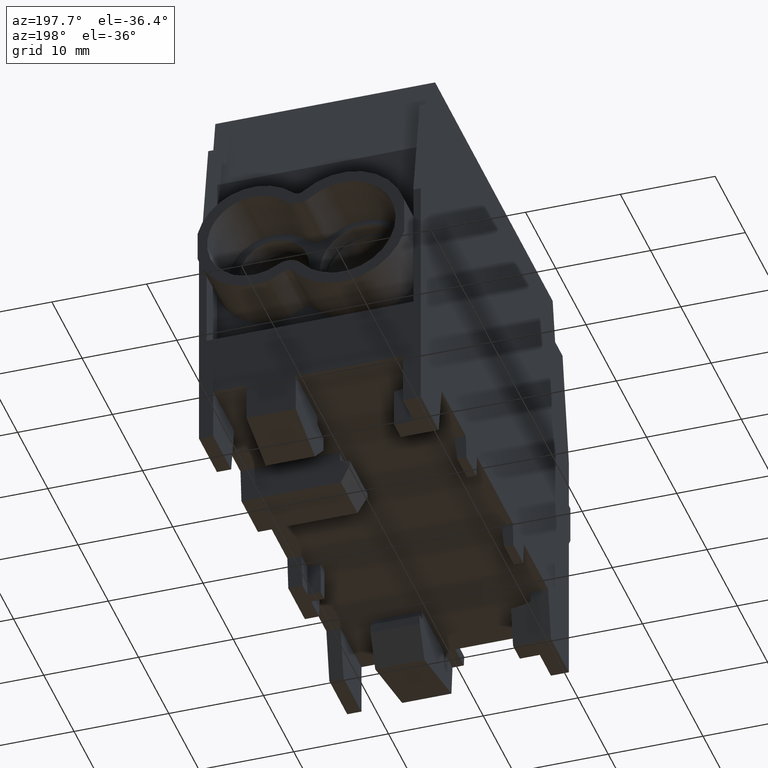
[diagram: clean part render]
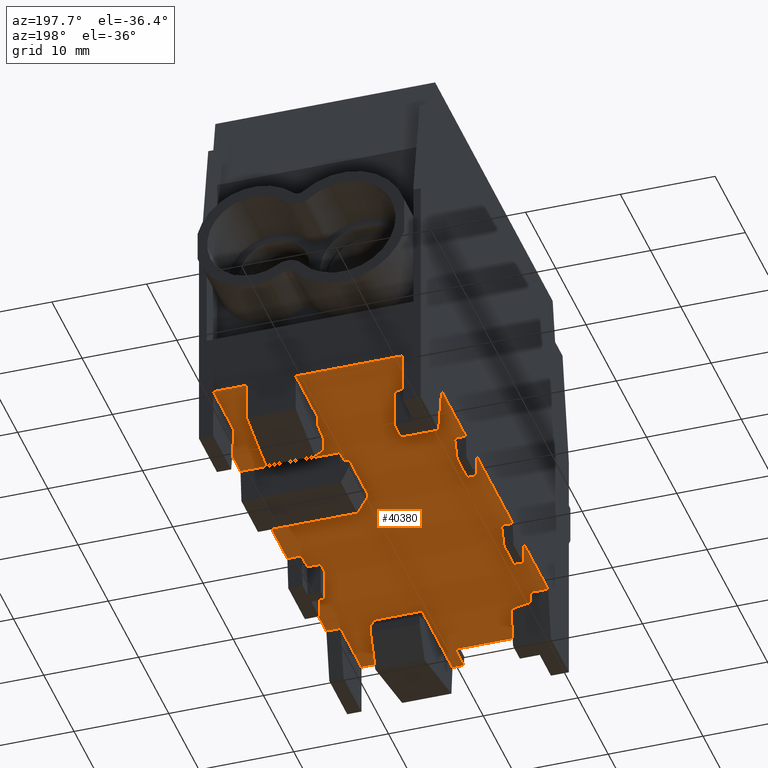
[diagram: same view with one face highlighted and labeled with its STEP entity id]
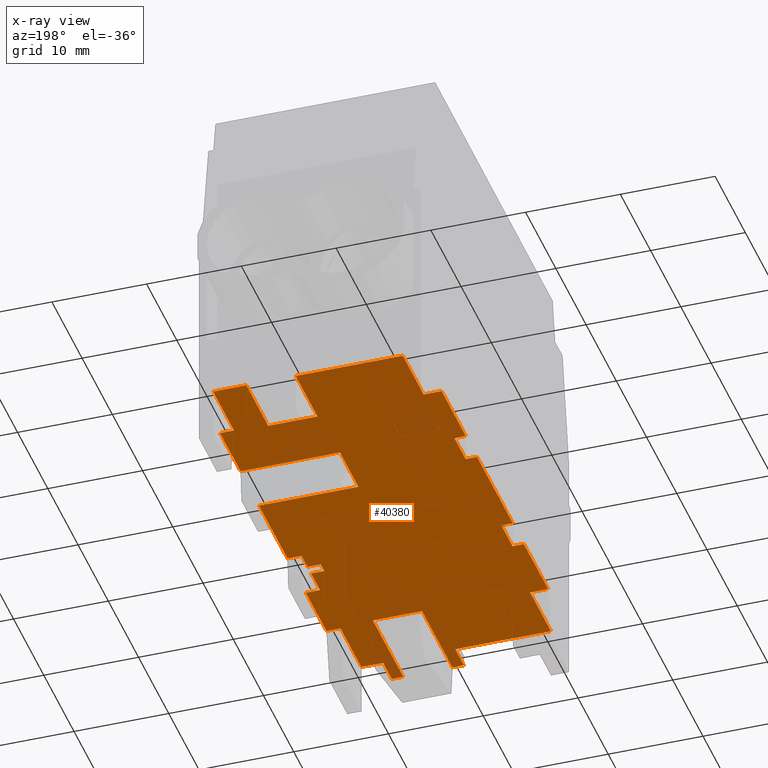
[diagram: x-ray of the same camera — body ghosted, the highlighted face saturated]
A machine part, auxiliary view. The second image highlights one B-rep face of the part: STEP entity #40380.
The next image is the same camera in x-ray: the body ghosted, the highlighted face saturated — about 4% of this face is hidden behind the body in this view.
In plain terms, the highlighted planar face has unit normal (0, 0, -1).
Its self-contained STEP definition (entity closure, byte-faithful):
#360=CARTESIAN_POINT('',(-11.7,-17.6,-8.));
#370=VERTEX_POINT('',#360);
#400=CARTESIAN_POINT('',(-11.7,7.105427357601E-15,-8.));
#410=DIRECTION('',(0.,1.,0.));
#420=VECTOR('',#410,1.);
#430=LINE('',#400,#420);
#440=CARTESIAN_POINT('',(-11.7,-9.59999999999999,-8.));
#450=VERTEX_POINT('',#440);
#460=EDGE_CURVE('',#370,#450,#430,.T.);
#680=CARTESIAN_POINT('',(-11.7,-5.89999999999999,-8.));
#690=VERTEX_POINT('',#680);
#720=CARTESIAN_POINT('',(-11.7,5.90000000000001,-8.));
#730=VERTEX_POINT('',#720);
#740=EDGE_CURVE('',#690,#730,#430,.T.);
#960=CARTESIAN_POINT('',(-11.7,9.60000000000001,-8.));
#970=VERTEX_POINT('',#960);
#1000=CARTESIAN_POINT('',(-11.7,17.6,-8.));
#1010=VERTEX_POINT('',#1000);
#1020=EDGE_CURVE('',#970,#1010,#430,.T.);
#1630=CARTESIAN_POINT('',(1.20000000000001,4.6999093082074,-8.));
#1640=VERTEX_POINT('',#1630);
#1790=CARTESIAN_POINT('',(1.20000000000001,10.8000906917926,-8.));
#1800=VERTEX_POINT('',#1790);
#1830=CARTESIAN_POINT('',(1.20000000000001,7.105427357601E-15,-8.));
#1840=DIRECTION('',(0.,-1.,0.));
#1850=VECTOR('',#1840,1.);
#1860=LINE('',#1830,#1850);
#1870=EDGE_CURVE('',#1800,#1640,#1860,.T.);
#7780=CARTESIAN_POINT('',(10.2,17.6,-8.));
#7790=VERTEX_POINT('',#7780);
#7940=CARTESIAN_POINT('',(10.2,24.5,-8.));
#7950=VERTEX_POINT('',#7940);
#7980=CARTESIAN_POINT('',(10.2,7.105427357601E-15,-8.));
#7990=DIRECTION('',(0.,-1.,0.));
#8000=VECTOR('',#7990,1.);
#8010=LINE('',#7980,#8000);
#8020=EDGE_CURVE('',#7950,#7790,#8010,.T.);
#12220=CARTESIAN_POINT('',(8.8,-6.64809008122832,-8.));
#12230=VERTEX_POINT('',#12220);
#12260=CARTESIAN_POINT('',(8.8,7.105427357601E-15,-8.));
#12270=DIRECTION('',(-1.22108605138914E-16,-1.,0.));
#12280=VECTOR('',#12270,1.);
#12290=LINE('',#12260,#12280);
#12300=CARTESIAN_POINT('',(8.8,-7.84809008122832,-8.));
#12310=VERTEX_POINT('',#12300);
#12320=EDGE_CURVE('',#12230,#12310,#12290,.T.);
#12590=CARTESIAN_POINT('',(1.50000000000001,-17.3,-8.));
#12600=VERTEX_POINT('',#12590);
#12770=CARTESIAN_POINT('',(6.70000000000001,-17.3,-8.));
#12780=VERTEX_POINT('',#12770);
#12810=CARTESIAN_POINT('',(5.32907051820075E-15,-17.3,-8.));
#12820=DIRECTION('',(-1.,0.,0.));
#12830=VECTOR('',#12820,1.);
#12840=LINE('',#12810,#12830);
#12850=EDGE_CURVE('',#12780,#12600,#12840,.T.);
#13980=CARTESIAN_POINT('',(0.300000000000005,-24.5,-8.));
#13990=VERTEX_POINT('',#13980);
#14020=CARTESIAN_POINT('',(5.32907051820075E-15,-24.5,-8.));
#14030=DIRECTION('',(-1.,0.,0.));
#14040=VECTOR('',#14030,1.);
#14050=LINE('',#14020,#14040);
#14060=CARTESIAN_POINT('',(-9.8,-24.5,-8.));
#14070=VERTEX_POINT('',#14060);
#14080=EDGE_CURVE('',#13990,#14070,#14050,.T.);
#14770=CARTESIAN_POINT('',(10.2,-24.5,-8.));
#14780=VERTEX_POINT('',#14770);
#14810=CARTESIAN_POINT('',(5.32907051820075E-15,-24.5,-8.));
#14820=DIRECTION('',(-1.,0.,0.));
#14830=VECTOR('',#14820,1.);
#14840=LINE('',#14810,#14830);
#14850=CARTESIAN_POINT('',(7.90000000000001,-24.5,-8.));
#14860=VERTEX_POINT('',#14850);
#14870=EDGE_CURVE('',#14780,#14860,#14840,.T.);
#15000=CARTESIAN_POINT('',(6.7,-24.5,-8.));
#15010=VERTEX_POINT('',#15000);
#15240=CARTESIAN_POINT('',(1.5,-24.5,-8.));
#15250=VERTEX_POINT('',#15240);
#16440=CARTESIAN_POINT('',(1.10000000000001,-27.35,-8.));
#16450=DIRECTION('',(1.,0.,0.));
#16460=VECTOR('',#16450,1.);
#16470=LINE('',#16440,#16460);
#16480=CARTESIAN_POINT('',(0.300000000000005,-27.35,-8.));
#16490=VERTEX_POINT('',#16480);
#16500=CARTESIAN_POINT('',(1.50000000000001,-27.35,-8.));
#16510=VERTEX_POINT('',#16500);
#16520=EDGE_CURVE('',#16490,#16510,#16470,.T.);
#16650=CARTESIAN_POINT('',(7.90000000000001,-27.35,-8.));
#16660=VERTEX_POINT('',#16650);
#16690=CARTESIAN_POINT('',(6.40000000000001,-27.35,-8.));
#16700=DIRECTION('',(1.,0.,0.));
#16710=VECTOR('',#16700,1.);
#16720=LINE('',#16690,#16710);
#16730=CARTESIAN_POINT('',(6.70000000000001,-27.35,-8.));
#16740=VERTEX_POINT('',#16730);
#16750=EDGE_CURVE('',#16740,#16660,#16720,.T.);
#17180=CARTESIAN_POINT('',(-9.8,-17.6,-8.));
#17190=VERTEX_POINT('',#17180);
#17400=CARTESIAN_POINT('',(-9.8,7.105427357601E-15,-8.));
#17410=DIRECTION('',(0.,-1.,0.));
#17420=VECTOR('',#17410,1.);
#17430=LINE('',#17400,#17420);
#17440=EDGE_CURVE('',#17190,#14070,#17430,.T.);
#17740=CARTESIAN_POINT('',(1.5,-25.8,-8.));
#17750=VERTEX_POINT('',#17740);
#17780=CARTESIAN_POINT('',(1.50000000000001,7.105427357601E-15,-8.));
#17790=DIRECTION('',(-2.46519032881566E-32,1.,0.));
#17800=VECTOR('',#17790,1.);
#17810=LINE('',#17780,#17800);
#17820=EDGE_CURVE('',#16510,#17750,#17810,.T.);
#18160=CARTESIAN_POINT('',(1.50000000000001,7.105427357601E-15,-8.));
#18170=DIRECTION('',(-2.46519032881566E-32,1.,0.));
#18180=VECTOR('',#18170,1.);
#18190=LINE('',#18160,#18180);
#18200=EDGE_CURVE('',#15250,#12600,#18190,.T.);
#19620=CARTESIAN_POINT('',(5.32907051820075E-15,-7.84809008122832,-8.));
#19630=DIRECTION('',(1.,-1.22108605138914E-16,0.));
#19640=VECTOR('',#19630,1.);
#19650=LINE('',#19620,#19640);
#19660=CARTESIAN_POINT('',(10.2,-7.84809008122832,-8.));
#19670=VERTEX_POINT('',#19660);
#19680=EDGE_CURVE('',#12310,#19670,#19650,.T.);
#22370=CARTESIAN_POINT('',(5.32907051820075E-15,17.6,-8.));
#22380=DIRECTION('',(-1.,0.,0.));
#22390=VECTOR('',#22380,1.);
#22400=LINE('',#22370,#22390);
#22410=CARTESIAN_POINT('',(11.7,17.6,-8.));
#22420=VERTEX_POINT('',#22410);
#22430=EDGE_CURVE('',#22420,#7790,#22400,.T.);
#23310=CARTESIAN_POINT('',(11.7,7.105427357601E-15,-8.));
#23320=DIRECTION('',(0.,-1.,0.));
#23330=VECTOR('',#23320,1.);
#23340=LINE('',#23310,#23330);
#23350=CARTESIAN_POINT('',(11.7,10.8000906917926,-8.));
#23360=VERTEX_POINT('',#23350);
#23370=EDGE_CURVE('',#22420,#23360,#23340,.T.);
#23500=CARTESIAN_POINT('',(11.7,4.6999093082074,-8.));
#23510=VERTEX_POINT('',#23500);
#23540=CARTESIAN_POINT('',(11.7,-4.69990930820738,-8.));
#23550=VERTEX_POINT('',#23540);
#23560=EDGE_CURVE('',#23510,#23550,#23340,.T.);
#23690=CARTESIAN_POINT('',(11.7,-10.8000906917926,-8.));
#23700=VERTEX_POINT('',#23690);
#23730=CARTESIAN_POINT('',(11.7,-17.6,-8.));
#23740=VERTEX_POINT('',#23730);
#23750=EDGE_CURVE('',#23700,#23740,#23340,.T.);
#24070=CARTESIAN_POINT('',(1.50000000000001,7.105427357601E-15,-8.));
#24080=DIRECTION('',(1.22108605138914E-16,1.,0.));
#24090=VECTOR('',#24080,1.);
#24100=LINE('',#24070,#24090);
#24110=CARTESIAN_POINT('',(1.50000000000001,17.3,-8.));
#24120=VERTEX_POINT('',#24110);
#24130=CARTESIAN_POINT('',(1.50000000000001,24.5,-8.));
#24140=VERTEX_POINT('',#24130);
#24150=EDGE_CURVE('',#24120,#24140,#24100,.T.);
#25250=CARTESIAN_POINT('',(-9.8,24.5,-8.));
#25260=VERTEX_POINT('',#25250);
#25290=CARTESIAN_POINT('',(5.32907051820075E-15,24.5,-8.));
#25300=DIRECTION('',(-1.,0.,0.));
#25310=VECTOR('',#25300,1.);
#25320=LINE('',#25290,#25310);
#25330=EDGE_CURVE('',#24140,#25260,#25320,.T.);
#25410=CARTESIAN_POINT('',(6.70000000000001,24.5,-8.));
#25420=VERTEX_POINT('',#25410);
#25450=EDGE_CURVE('',#7950,#25420,#25320,.T.);
#26110=CARTESIAN_POINT('',(5.32907051820075E-15,17.6,-8.));
#26120=DIRECTION('',(1.,0.,0.));
#26130=VECTOR('',#26120,1.);
#26140=LINE('',#26110,#26130);
#26150=CARTESIAN_POINT('',(-9.8,17.6,-8.));
#26160=VERTEX_POINT('',#26150);
#26170=EDGE_CURVE('',#1010,#26160,#26140,.T.);
#27450=CARTESIAN_POINT('',(7.90000000000001,-25.3,-8.));
#27460=DIRECTION('',(0.,-1.,0.));
#27470=VECTOR('',#27460,1.);
#27480=LINE('',#27450,#27470);
#27490=EDGE_CURVE('',#14860,#16660,#27480,.T.);
#27660=CARTESIAN_POINT('',(5.32907051820075E-15,-5.89999999999999,-8.));
#27670=DIRECTION('',(1.,0.,0.));
#27680=VECTOR('',#27670,1.);
#27690=LINE('',#27660,#27680);
#27700=CARTESIAN_POINT('',(-10.5,-5.89999999999999,-8.));
#27710=VERTEX_POINT('',#27700);
#27720=EDGE_CURVE('',#690,#27710,#27690,.T.);
#28040=CARTESIAN_POINT('',(-10.5,7.105427357601E-15,-8.));
#28050=DIRECTION('',(0.,-1.,0.));
#28060=VECTOR('',#28050,1.);
#28070=LINE('',#28040,#28060);
#28080=CARTESIAN_POINT('',(-10.5,-9.59999999999999,-8.));
#28090=VERTEX_POINT('',#28080);
#28100=EDGE_CURVE('',#27710,#28090,#28070,.T.);
#28420=CARTESIAN_POINT('',(5.32907051820075E-15,-9.59999999999999,-8.));
#28430=DIRECTION('',(-1.,0.,0.));
#28440=VECTOR('',#28430,1.);
#28450=LINE('',#28420,#28440);
#28460=EDGE_CURVE('',#28090,#450,#28450,.T.);
#29210=CARTESIAN_POINT('',(5.32907051820075E-15,-17.6,-8.));
#29220=DIRECTION('',(-1.,0.,0.));
#29230=VECTOR('',#29220,1.);
#29240=LINE('',#29210,#29230);
#29250=CARTESIAN_POINT('',(10.2,-17.6,-8.));
#29260=VERTEX_POINT('',#29250);
#29270=EDGE_CURVE('',#23740,#29260,#29240,.T.);
#29530=CARTESIAN_POINT('',(5.32907051820075E-15,-17.6,-8.));
#29540=DIRECTION('',(1.,0.,0.));
#29550=VECTOR('',#29540,1.);
#29560=LINE('',#29530,#29550);
#29570=EDGE_CURVE('',#370,#17190,#29560,.T.);
#30640=CARTESIAN_POINT('',(5.32907051820075E-15,9.60000000000001,-8.));
#30650=DIRECTION('',(1.,0.,0.));
#30660=VECTOR('',#30650,1.);
#30670=LINE('',#30640,#30660);
#30680=CARTESIAN_POINT('',(-10.5,9.60000000000001,-8.));
#30690=VERTEX_POINT('',#30680);
#30700=EDGE_CURVE('',#970,#30690,#30670,.T.);
#31020=CARTESIAN_POINT('',(-10.5,7.105427357601E-15,-8.));
#31030=DIRECTION('',(0.,-1.,0.));
#31040=VECTOR('',#31030,1.);
#31050=LINE('',#31020,#31040);
#31060=CARTESIAN_POINT('',(-10.5,5.90000000000001,-8.));
#31070=VERTEX_POINT('',#31060);
#31080=EDGE_CURVE('',#30690,#31070,#31050,.T.);
#31400=CARTESIAN_POINT('',(5.32907051820075E-15,5.90000000000001,-8.));
#31410=DIRECTION('',(-1.,0.,0.));
#31420=VECTOR('',#31410,1.);
#31430=LINE('',#31400,#31420);
#31440=EDGE_CURVE('',#31070,#730,#31430,.T.);
#32500=CARTESIAN_POINT('',(6.70000000000001,-24.5,-8.));
#32510=DIRECTION('',(0.,1.,0.));
#32520=VECTOR('',#32510,1.);
#32530=LINE('',#32500,#32520);
#32540=CARTESIAN_POINT('',(6.7,-25.8,-8.));
#32550=VERTEX_POINT('',#32540);
#32560=EDGE_CURVE('',#16740,#32550,#32530,.T.);
#32730=CARTESIAN_POINT('',(6.70000000000001,7.105427357601E-15,-8.));
#32740=DIRECTION('',(0.,1.,0.));
#32750=VECTOR('',#32740,1.);
#32760=LINE('',#32730,#32750);
#32770=EDGE_CURVE('',#15010,#12780,#32760,.T.);
#34480=CARTESIAN_POINT('',(10.2,-6.64809008122832,-8.));
#34490=VERTEX_POINT('',#34480);
#34520=CARTESIAN_POINT('',(5.32907051820075E-15,-6.64809008122832,-8.));
#34530=DIRECTION('',(-1.,1.22108605138914E-16,0.));
#34540=VECTOR('',#34530,1.);
#34550=LINE('',#34520,#34540);
#34560=EDGE_CURVE('',#34490,#12230,#34550,.T.);
#34770=CARTESIAN_POINT('',(0.300000000000005,-25.3,-8.));
#34780=DIRECTION('',(0.,-1.,0.));
#34790=VECTOR('',#34780,1.);
#34800=LINE('',#34770,#34790);
#34810=EDGE_CURVE('',#13990,#16490,#34800,.T.);
#35630=CARTESIAN_POINT('',(6.70000000000001,17.3,-8.));
#35640=VERTEX_POINT('',#35630);
#35670=CARTESIAN_POINT('',(6.70000000000001,7.105427357601E-15,-8.));
#35680=DIRECTION('',(0.,-1.,0.));
#35690=VECTOR('',#35680,1.);
#35700=LINE('',#35670,#35690);
#35710=EDGE_CURVE('',#25420,#35640,#35700,.T.);
#35860=EDGE_CURVE('',#29260,#14780,#8010,.T.);
#36430=CARTESIAN_POINT('',(5.32907051820075E-15,10.8000906917926,-8.));
#36440=DIRECTION('',(1.,0.,0.));
#36450=VECTOR('',#36440,1.);
#36460=LINE('',#36430,#36450);
#36470=EDGE_CURVE('',#1800,#23360,#36460,.T.);
#38250=CARTESIAN_POINT('',(5.32907051820075E-15,-4.69990930820738,-8.));
#38260=DIRECTION('',(1.,0.,0.));
#38270=VECTOR('',#38260,1.);
#38280=LINE('',#38250,#38270);
#38290=CARTESIAN_POINT('',(10.2,-4.69990930820738,-8.));
#38300=VERTEX_POINT('',#38290);
#38310=EDGE_CURVE('',#38300,#23550,#38280,.T.);
#38510=EDGE_CURVE('',#38300,#34490,#8010,.T.);
#38800=CARTESIAN_POINT('',(5.32907051820075E-15,4.6999093082074,-8.));
#38810=DIRECTION('',(-1.,0.,0.));
#38820=VECTOR('',#38810,1.);
#38830=LINE('',#38800,#38820);
#38840=EDGE_CURVE('',#23510,#1640,#38830,.T.);
#39590=CARTESIAN_POINT('',(11.7,-24.5,-8.));
#39600=DIRECTION('',(0.,0.,-1.));
#39610=DIRECTION('',(-1.,0.,0.));
#39620=AXIS2_PLACEMENT_3D('',#39590,#39600,#39610);
#39630=PLANE('',#39620);
#39640=ORIENTED_EDGE('',*,*,#32560,.T.);
#39650=ORIENTED_EDGE('',*,*,#16750,.F.);
#39660=ORIENTED_EDGE('',*,*,#27490,.T.);
#39670=ORIENTED_EDGE('',*,*,#14870,.T.);
#39680=ORIENTED_EDGE('',*,*,#35860,.T.);
#39690=ORIENTED_EDGE('',*,*,#29270,.T.);
#39700=ORIENTED_EDGE('',*,*,#23750,.T.);
#39710=CARTESIAN_POINT('',(5.32907051820075E-15,-10.8000906917926,-8.));
#39720=DIRECTION('',(-1.,0.,0.));
#39730=VECTOR('',#39720,1.);
#39740=LINE('',#39710,#39730);
#39750=CARTESIAN_POINT('',(10.2,-10.8000906917926,-8.));
#39760=VERTEX_POINT('',#39750);
#39770=EDGE_CURVE('',#23700,#39760,#39740,.T.);
#39780=ORIENTED_EDGE('',*,*,#39770,.F.);
#39790=EDGE_CURVE('',#19670,#39760,#8010,.T.);
#39800=ORIENTED_EDGE('',*,*,#39790,.T.);
#39810=ORIENTED_EDGE('',*,*,#19680,.T.);
#39820=ORIENTED_EDGE('',*,*,#12320,.T.);
#39830=ORIENTED_EDGE('',*,*,#34560,.T.);
#39840=ORIENTED_EDGE('',*,*,#38510,.T.);
#39850=ORIENTED_EDGE('',*,*,#38310,.F.);
#39860=ORIENTED_EDGE('',*,*,#23560,.T.);
#39870=ORIENTED_EDGE('',*,*,#38840,.F.);
#39880=ORIENTED_EDGE('',*,*,#1870,.T.);
#39890=ORIENTED_EDGE('',*,*,#36470,.F.);
#39900=ORIENTED_EDGE('',*,*,#23370,.T.);
#39910=ORIENTED_EDGE('',*,*,#22430,.F.);
#39920=ORIENTED_EDGE('',*,*,#8020,.T.);
#39930=ORIENTED_EDGE('',*,*,#25450,.F.);
#39940=ORIENTED_EDGE('',*,*,#35710,.F.);
#39950=CARTESIAN_POINT('',(5.32907051820075E-15,17.3,-8.));
#39960=DIRECTION('',(1.,-1.22108605138914E-16,0.));
#39970=VECTOR('',#39960,1.);
#39980=LINE('',#39950,#39970);
#39990=EDGE_CURVE('',#24120,#35640,#39980,.T.);
#40000=ORIENTED_EDGE('',*,*,#39990,.T.);
#40010=ORIENTED_EDGE('',*,*,#24150,.F.);
#40020=ORIENTED_EDGE('',*,*,#25330,.F.);
#40030=EDGE_CURVE('',#25260,#26160,#17430,.T.);
#40040=ORIENTED_EDGE('',*,*,#40030,.F.);
#40050=ORIENTED_EDGE('',*,*,#26170,.T.);
#40060=ORIENTED_EDGE('',*,*,#1020,.T.);
#40070=ORIENTED_EDGE('',*,*,#30700,.F.);
#40080=ORIENTED_EDGE('',*,*,#31080,.F.);
#40090=ORIENTED_EDGE('',*,*,#31440,.F.);
#40100=ORIENTED_EDGE('',*,*,#740,.T.);
#40110=ORIENTED_EDGE('',*,*,#27720,.F.);
#40120=ORIENTED_EDGE('',*,*,#28100,.F.);
#40130=ORIENTED_EDGE('',*,*,#28460,.F.);
#40140=ORIENTED_EDGE('',*,*,#460,.T.);
#40150=ORIENTED_EDGE('',*,*,#29570,.F.);
#40160=ORIENTED_EDGE('',*,*,#17440,.F.);
#40170=ORIENTED_EDGE('',*,*,#14080,.T.);
#40180=ORIENTED_EDGE('',*,*,#34810,.F.);
#40190=ORIENTED_EDGE('',*,*,#16520,.F.);
#40200=ORIENTED_EDGE('',*,*,#17820,.F.);
#40210=CARTESIAN_POINT('',(1.5,7.105427357601E-15,-8.));
#40220=DIRECTION('',(-1.53309753632348E-33,1.,0.));
#40230=VECTOR('',#40220,1.);
#40240=LINE('',#40210,#40230);
#40250=EDGE_CURVE('',#17750,#15250,#40240,.T.);
#40260=ORIENTED_EDGE('',*,*,#40250,.F.);
#40270=ORIENTED_EDGE('',*,*,#18200,.F.);
#40280=ORIENTED_EDGE('',*,*,#12850,.T.);
#40290=ORIENTED_EDGE('',*,*,#32770,.T.);
#40300=CARTESIAN_POINT('',(6.7,7.105427357601E-15,-8.));
#40310=DIRECTION('',(1.53309753632348E-33,-1.,0.));
#40320=VECTOR('',#40310,1.);
#40330=LINE('',#40300,#40320);
#40340=EDGE_CURVE('',#15010,#32550,#40330,.T.);
#40350=ORIENTED_EDGE('',*,*,#40340,.F.);
#40360=EDGE_LOOP('',(#40350,#40290,#40280,#40270,#40260,#40200,#40190,
#40180,#40170,#40160,#40150,#40140,#40130,#40120,#40110,#40100,#40090,
#40080,#40070,#40060,#40050,#40040,#40020,#40010,#40000,#39940,#39930,
#39920,#39910,#39900,#39890,#39880,#39870,#39860,#39850,#39840,#39830,
#39820,#39810,#39800,#39780,#39700,#39690,#39680,#39670,#39660,#39650,
#39640));
#40370=FACE_OUTER_BOUND('',#40360,.T.);
#40380=ADVANCED_FACE('',(#40370),#39630,.T.);